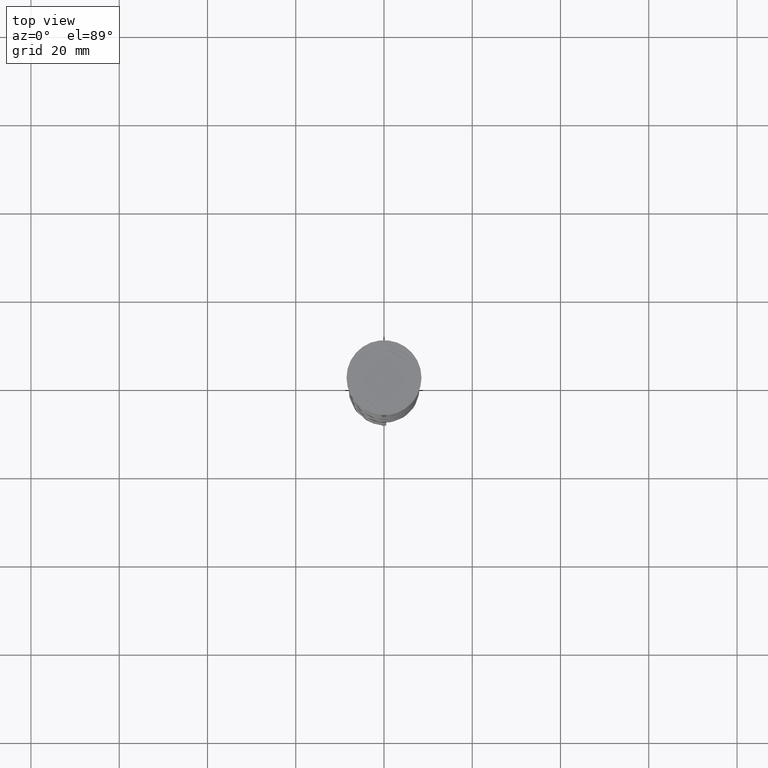
[diagram: clean part render]
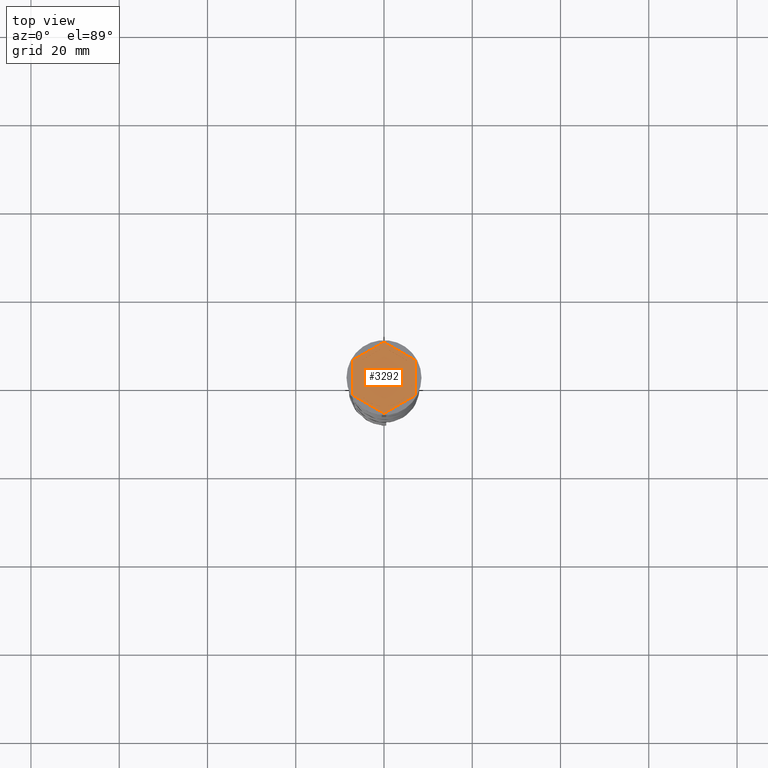
[diagram: same view with one face highlighted and labeled with its STEP entity id]
A machine part, top view. The second image highlights one B-rep face of the part: STEP entity #3292.
In plain terms, the highlighted planar face has unit normal (0, 0, 1).
Its self-contained STEP definition (entity closure, byte-faithful):
#5 = ORIENTED_EDGE ( 'NONE', *, *, #3180, .F. ) ;
#21 = EDGE_CURVE ( 'NONE', #2176, #1608, #1338, .T. ) ;
#42 = EDGE_CURVE ( 'NONE', #2419, #2198, #729, .T. ) ;
#61 = EDGE_CURVE ( 'NONE', #1783, #1264, #216, .T. ) ;
#80 = CARTESIAN_POINT ( 'NONE',  ( -7.000000000000000888, 4.041451884327381450, -1.000000000000000000 ) ) ;
#142 = CARTESIAN_POINT ( 'NONE',  ( -1.301042606982605321E-15, -6.928203230275509661, -1.000000000000000888 ) ) ;
#154 = CARTESIAN_POINT ( 'NONE',  ( 0.000000000000000000, 0.000000000000000000, -1.000000000000000000 ) ) ;
#172 = FACE_BOUND ( 'NONE', #3289, .T. ) ;
#174 = CARTESIAN_POINT ( 'NONE',  ( -7.000000000000000888, 4.041451884327381450, -1.000000000000000000 ) ) ;
#183 = LINE ( 'NONE', #1062, #2480 ) ;
#191 = EDGE_LOOP ( 'NONE', ( #3564, #953, #5 ) ) ;
#192 = VECTOR ( 'NONE', #3730, 1000.000000000000114 ) ;
#216 = LINE ( 'NONE', #1090, #3320 ) ;
#224 = VERTEX_POINT ( 'NONE', #356 ) ;
#225 = DIRECTION ( 'NONE',  ( 1.000000000000000000, 0.000000000000000000, 0.000000000000000000 ) ) ;
#248 = DIRECTION ( 'NONE',  ( -0.8660254037844385966, -0.4999999999999999445, 0.000000000000000000 ) ) ;
#277 = CARTESIAN_POINT ( 'NONE',  ( -0.8349364905388981795, 6.446152422706633800, -1.000000000000000888 ) ) ;
#278 = VERTEX_POINT ( 'NONE', #415 ) ;
#309 = ORIENTED_EDGE ( 'NONE', *, *, #3424, .F. ) ;
#332 = CARTESIAN_POINT ( 'NONE',  ( 0.000000000000000000, 8.082903768654762899, -1.000000000000000000 ) ) ;
#355 = CARTESIAN_POINT ( 'NONE',  ( 0.000000000000000000, 0.000000000000000000, -1.000000000000000000 ) ) ;
#356 = CARTESIAN_POINT ( 'NONE',  ( -7.000000000000000888, -4.041451884327381450, -1.000000000000000000 ) ) ;
#363 = VECTOR ( 'NONE', #368, 1000.000000000000227 ) ;
#368 = DIRECTION ( 'NONE',  ( 0.8660254037844384856, 0.5000000000000001110, 0.000000000000000000 ) ) ;
#402 = ORIENTED_EDGE ( 'NONE', *, *, #1915, .T. ) ;
#415 = CARTESIAN_POINT ( 'NONE',  ( -5.165063509461097269, -3.946152422706633356, -1.000000000000000888 ) ) ;
#473 = FACE_OUTER_BOUND ( 'NONE', #2677, .T. ) ;
#492 = DIRECTION ( 'NONE',  ( 1.000000000000000000, 0.000000000000000000, 0.000000000000000000 ) ) ;
#596 = ORIENTED_EDGE ( 'NONE', *, *, #42, .F. ) ;
#599 = CARTESIAN_POINT ( 'NONE',  ( 0.8349364905389003999, 6.446152422706633800, -1.000000000000000888 ) ) ;
#607 = CARTESIAN_POINT ( 'NONE',  ( 7.000000000000000000, -4.041451884327381450, -1.000000000000000000 ) ) ;
#649 = DIRECTION ( 'NONE',  ( 0.000000000000000000, 1.000000000000000000, 0.000000000000000000 ) ) ;
#707 = CARTESIAN_POINT ( 'NONE',  ( 5.999999999999999112, -3.464101615137755719, -1.000000000000000888 ) ) ;
#724 = PLANE ( 'NONE',  #2796 ) ;
#729 = CIRCLE ( 'NONE', #2044, 6.500000000000000888 ) ;
#738 = AXIS2_PLACEMENT_3D ( 'NONE', #3187, #1787, #910 ) ;
#760 = CARTESIAN_POINT ( 'NONE',  ( -6.000000000000000000, 2.500000000000001776, -1.000000000000000888 ) ) ;
#825 = LINE ( 'NONE', #1441, #192 ) ;
#894 = ORIENTED_EDGE ( 'NONE', *, *, #1004, .F. ) ;
#910 = DIRECTION ( 'NONE',  ( 1.000000000000000000, 0.000000000000000000, 0.000000000000000000 ) ) ;
#953 = ORIENTED_EDGE ( 'NONE', *, *, #3029, .F. ) ;
#973 = CARTESIAN_POINT ( 'NONE',  ( 0.000000000000000000, 0.000000000000000000, -1.000000000000000000 ) ) ;
#981 = CIRCLE ( 'NONE', #738, 6.500000000000000888 ) ;
#1002 = CARTESIAN_POINT ( 'NONE',  ( -0.8349364905389056180, -6.446152422706632024, -1.000000000000000888 ) ) ;
#1004 = EDGE_CURVE ( 'NONE', #2278, #278, #1231, .T. ) ;
#1016 = ORIENTED_EDGE ( 'NONE', *, *, #2645, .T. ) ;
#1026 = VERTEX_POINT ( 'NONE', #599 ) ;
#1044 = CARTESIAN_POINT ( 'NONE',  ( 7.000000000000000888, 4.041451884327382338, -1.000000000000000000 ) ) ;
#1053 = DIRECTION ( 'NONE',  ( 1.000000000000000000, 0.000000000000000000, -0.000000000000000000 ) ) ;
#1062 = CARTESIAN_POINT ( 'NONE',  ( 6.000000000000000888, 3.464101615137753942, -1.000000000000000888 ) ) ;
#1090 = CARTESIAN_POINT ( 'NONE',  ( 0.000000000000000000, 8.082903768654762899, -1.000000000000000000 ) ) ;
#1101 = VERTEX_POINT ( 'NONE', #2159 ) ;
#1139 = CARTESIAN_POINT ( 'NONE',  ( 6.000000000000000888, 2.500000000000000444, -1.000000000000000888 ) ) ;
#1169 = VECTOR ( 'NONE', #2683, 1000.000000000000000 ) ;
#1174 = VERTEX_POINT ( 'NONE', #1598 ) ;
#1221 = DIRECTION ( 'NONE',  ( 0.000000000000000000, 0.000000000000000000, 1.000000000000000000 ) ) ;
#1230 = AXIS2_PLACEMENT_3D ( 'NONE', #355, #3559, #1519 ) ;
#1231 = LINE ( 'NONE', #1730, #2048 ) ;
#1238 = ORIENTED_EDGE ( 'NONE', *, *, #3253, .F. ) ;
#1264 = VERTEX_POINT ( 'NONE', #174 ) ;
#1296 = CARTESIAN_POINT ( 'NONE',  ( 0.000000000000000000, 0.000000000000000000, -1.000000000000000000 ) ) ;
#1304 = DIRECTION ( 'NONE',  ( -0.8660254037844387076, -0.4999999999999998890, 0.000000000000000000 ) ) ;
#1338 = LINE ( 'NONE', #1390, #3196 ) ;
#1354 = CARTESIAN_POINT ( 'NONE',  ( 0.000000000000000000, 0.000000000000000000, -1.000000000000000000 ) ) ;
#1390 = CARTESIAN_POINT ( 'NONE',  ( 7.000000000000000000, -4.041451884327381450, -1.000000000000000000 ) ) ;
#1441 = CARTESIAN_POINT ( 'NONE',  ( -7.000000000000000888, -4.041451884327381450, -1.000000000000000000 ) ) ;
#1472 = CIRCLE ( 'NONE', #2853, 6.500000000000000888 ) ;
#1476 = EDGE_CURVE ( 'NONE', #224, #1174, #825, .T. ) ;
#1483 = CARTESIAN_POINT ( 'NONE',  ( 5.999999999999999112, -2.500000000000003109, -1.000000000000000888 ) ) ;
#1500 = ORIENTED_EDGE ( 'NONE', *, *, #1476, .T. ) ;
#1507 = EDGE_LOOP ( 'NONE', ( #2379, #1971 ) ) ;
#1511 = CARTESIAN_POINT ( 'NONE',  ( 2.174016704710901386E-15, -8.082903768654762899, -1.000000000000000000 ) ) ;
#1519 = DIRECTION ( 'NONE',  ( 1.000000000000000000, 0.000000000000000000, 0.000000000000000000 ) ) ;
#1529 = AXIS2_PLACEMENT_3D ( 'NONE', #154, #2449, #225 ) ;
#1538 = DIRECTION ( 'NONE',  ( 1.000000000000000000, 0.000000000000000000, 0.000000000000000000 ) ) ;
#1553 = VERTEX_POINT ( 'NONE', #277 ) ;
#1573 = DIRECTION ( 'NONE',  ( -2.503857664561932376E-16, -1.000000000000000000, 0.000000000000000000 ) ) ;
#1589 = CIRCLE ( 'NONE', #2728, 6.500000000000000888 ) ;
#1598 = CARTESIAN_POINT ( 'NONE',  ( 2.174016704710901386E-15, -8.082903768654762899, -1.000000000000000000 ) ) ;
#1608 = VERTEX_POINT ( 'NONE', #3535 ) ;
#1620 = LINE ( 'NONE', #1044, #2787 ) ;
#1634 = EDGE_CURVE ( 'NONE', #1861, #1917, #981, .T. ) ;
#1644 = EDGE_CURVE ( 'NONE', #1174, #2176, #3518, .T. ) ;
#1659 = ORIENTED_EDGE ( 'NONE', *, *, #21, .T. ) ;
#1663 = ORIENTED_EDGE ( 'NONE', *, *, #3067, .F. ) ;
#1708 = CIRCLE ( 'NONE', #2062, 6.500000000000000888 ) ;
#1730 = CARTESIAN_POINT ( 'NONE',  ( -6.000000000000000000, -3.464101615137754830, -1.000000000000000888 ) ) ;
#1783 = VERTEX_POINT ( 'NONE', #332 ) ;
#1787 = DIRECTION ( 'NONE',  ( 0.000000000000000000, 0.000000000000000000, 1.000000000000000000 ) ) ;
#1857 = FACE_BOUND ( 'NONE', #2043, .T. ) ;
#1861 = VERTEX_POINT ( 'NONE', #760 ) ;
#1876 = DIRECTION ( 'NONE',  ( 0.000000000000000000, 0.000000000000000000, 1.000000000000000000 ) ) ;
#1896 = CARTESIAN_POINT ( 'NONE',  ( 5.165063509461097269, 3.946152422706633356, -1.000000000000000888 ) ) ;
#1915 = EDGE_CURVE ( 'NONE', #1608, #1783, #1620, .T. ) ;
#1917 = VERTEX_POINT ( 'NONE', #2771 ) ;
#1927 = FACE_BOUND ( 'NONE', #3280, .T. ) ;
#1956 = CARTESIAN_POINT ( 'NONE',  ( 0.8349364905389008440, -6.446152422706633800, -1.000000000000000888 ) ) ;
#1960 = EDGE_CURVE ( 'NONE', #1026, #3379, #183, .T. ) ;
#1971 = ORIENTED_EDGE ( 'NONE', *, *, #3700, .F. ) ;
#1997 = VECTOR ( 'NONE', #1304, 1000.000000000000000 ) ;
#2043 = EDGE_LOOP ( 'NONE', ( #3031, #1238 ) ) ;
#2044 = AXIS2_PLACEMENT_3D ( 'NONE', #2211, #3088, #3676 ) ;
#2048 = VECTOR ( 'NONE', #2069, 1000.000000000000000 ) ;
#2062 = AXIS2_PLACEMENT_3D ( 'NONE', #973, #1221, #2995 ) ;
#2069 = DIRECTION ( 'NONE',  ( -0.8660254037844385966, 0.5000000000000001110, 0.000000000000000000 ) ) ;
#2159 = CARTESIAN_POINT ( 'NONE',  ( -5.165063509461101710, 3.946152422706626250, -1.000000000000000888 ) ) ;
#2173 = VERTEX_POINT ( 'NONE', #1483 ) ;
#2176 = VERTEX_POINT ( 'NONE', #607 ) ;
#2184 = DIRECTION ( 'NONE',  ( 0.8660254037844388186, -0.4999999999999998335, 0.000000000000000000 ) ) ;
#2198 = VERTEX_POINT ( 'NONE', #2942 ) ;
#2206 = FACE_BOUND ( 'NONE', #3047, .T. ) ;
#2211 = CARTESIAN_POINT ( 'NONE',  ( 0.000000000000000000, 0.000000000000000000, -1.000000000000000000 ) ) ;
#2233 = DIRECTION ( 'NONE',  ( 0.8660254037844385966, 0.5000000000000001110, -0.000000000000000000 ) ) ;
#2253 = LINE ( 'NONE', #3417, #2310 ) ;
#2278 = VERTEX_POINT ( 'NONE', #1002 ) ;
#2286 = EDGE_CURVE ( 'NONE', #2198, #2419, #2729, .T. ) ;
#2310 = VECTOR ( 'NONE', #2233, 1000.000000000000000 ) ;
#2375 = CARTESIAN_POINT ( 'NONE',  ( -6.000000000000000000, 3.464101615137752166, -1.000000000000000888 ) ) ;
#2379 = ORIENTED_EDGE ( 'NONE', *, *, #3366, .F. ) ;
#2419 = VERTEX_POINT ( 'NONE', #1956 ) ;
#2426 = DIRECTION ( 'NONE',  ( -0.8660254037844387076, 0.4999999999999998890, 0.000000000000000000 ) ) ;
#2443 = ORIENTED_EDGE ( 'NONE', *, *, #61, .T. ) ;
#2449 = DIRECTION ( 'NONE',  ( 0.000000000000000000, 0.000000000000000000, 1.000000000000000000 ) ) ;
#2480 = VECTOR ( 'NONE', #2184, 999.9999999999998863 ) ;
#2486 = VECTOR ( 'NONE', #1573, 1000.000000000000000 ) ;
#2502 = ORIENTED_EDGE ( 'NONE', *, *, #1960, .F. ) ;
#2506 = LINE ( 'NONE', #707, #2486 ) ;
#2511 = DIRECTION ( 'NONE',  ( 1.073081856240827703E-16, 1.000000000000000000, 0.000000000000000000 ) ) ;
#2645 = EDGE_CURVE ( 'NONE', #1264, #224, #2666, .T. ) ;
#2666 = LINE ( 'NONE', #80, #1169 ) ;
#2677 = EDGE_LOOP ( 'NONE', ( #402, #2443, #1016, #1500, #3184, #1659 ) ) ;
#2683 = DIRECTION ( 'NONE',  ( 0.000000000000000000, -1.000000000000000000, 0.000000000000000000 ) ) ;
#2727 = VECTOR ( 'NONE', #649, 1000.000000000000000 ) ;
#2728 = AXIS2_PLACEMENT_3D ( 'NONE', #3584, #3545, #1538 ) ;
#2729 = LINE ( 'NONE', #142, #1997 ) ;
#2771 = CARTESIAN_POINT ( 'NONE',  ( -6.500000000000000888, 0.000000000000000000, -1.000000000000000000 ) ) ;
#2787 = VECTOR ( 'NONE', #2426, 1000.000000000000114 ) ;
#2796 = AXIS2_PLACEMENT_3D ( 'NONE', #1354, #1876, #1053 ) ;
#2853 = AXIS2_PLACEMENT_3D ( 'NONE', #1296, #3013, #492 ) ;
#2942 = CARTESIAN_POINT ( 'NONE',  ( 5.165063509461097269, -3.946152422706631580, -1.000000000000000888 ) ) ;
#2995 = DIRECTION ( 'NONE',  ( 1.000000000000000000, 0.000000000000000000, 0.000000000000000000 ) ) ;
#3013 = DIRECTION ( 'NONE',  ( 0.000000000000000000, 0.000000000000000000, 1.000000000000000000 ) ) ;
#3029 = EDGE_CURVE ( 'NONE', #3365, #1861, #3218, .T. ) ;
#3031 = ORIENTED_EDGE ( 'NONE', *, *, #3211, .F. ) ;
#3047 = EDGE_LOOP ( 'NONE', ( #309, #894 ) ) ;
#3065 = CARTESIAN_POINT ( 'NONE',  ( -6.000000000000000000, -2.500000000000001776, -1.000000000000000888 ) ) ;
#3067 = EDGE_CURVE ( 'NONE', #3379, #1026, #1589, .T. ) ;
#3088 = DIRECTION ( 'NONE',  ( 0.000000000000000000, 0.000000000000000000, 1.000000000000000000 ) ) ;
#3180 = EDGE_CURVE ( 'NONE', #1917, #3365, #3523, .T. ) ;
#3184 = ORIENTED_EDGE ( 'NONE', *, *, #1644, .T. ) ;
#3187 = CARTESIAN_POINT ( 'NONE',  ( 0.000000000000000000, 0.000000000000000000, -1.000000000000000000 ) ) ;
#3196 = VECTOR ( 'NONE', #2511, 1000.000000000000000 ) ;
#3211 = EDGE_CURVE ( 'NONE', #2173, #3499, #1708, .T. ) ;
#3218 = LINE ( 'NONE', #2375, #2727 ) ;
#3253 = EDGE_CURVE ( 'NONE', #3499, #2173, #2506, .T. ) ;
#3280 = EDGE_LOOP ( 'NONE', ( #1663, #2502 ) ) ;
#3281 = CIRCLE ( 'NONE', #1529, 6.500000000000000888 ) ;
#3289 = EDGE_LOOP ( 'NONE', ( #596, #3519 ) ) ;
#3292 = ADVANCED_FACE ( 'NONE', ( #1927, #1857, #172, #2206, #3671, #3619, #473 ), #724, .T. ) ;
#3320 = VECTOR ( 'NONE', #248, 1000.000000000000114 ) ;
#3365 = VERTEX_POINT ( 'NONE', #3065 ) ;
#3366 = EDGE_CURVE ( 'NONE', #1553, #1101, #1472, .T. ) ;
#3379 = VERTEX_POINT ( 'NONE', #1896 ) ;
#3417 = CARTESIAN_POINT ( 'NONE',  ( 0.000000000000000000, 6.928203230275507885, -1.000000000000000888 ) ) ;
#3424 = EDGE_CURVE ( 'NONE', #278, #2278, #3281, .T. ) ;
#3499 = VERTEX_POINT ( 'NONE', #1139 ) ;
#3518 = LINE ( 'NONE', #1511, #363 ) ;
#3519 = ORIENTED_EDGE ( 'NONE', *, *, #2286, .F. ) ;
#3523 = CIRCLE ( 'NONE', #1230, 6.500000000000000888 ) ;
#3535 = CARTESIAN_POINT ( 'NONE',  ( 7.000000000000000888, 4.041451884327382338, -1.000000000000000000 ) ) ;
#3545 = DIRECTION ( 'NONE',  ( 0.000000000000000000, 0.000000000000000000, 1.000000000000000000 ) ) ;
#3559 = DIRECTION ( 'NONE',  ( 0.000000000000000000, 0.000000000000000000, 1.000000000000000000 ) ) ;
#3564 = ORIENTED_EDGE ( 'NONE', *, *, #1634, .F. ) ;
#3584 = CARTESIAN_POINT ( 'NONE',  ( 0.000000000000000000, 0.000000000000000000, -1.000000000000000000 ) ) ;
#3619 = FACE_BOUND ( 'NONE', #1507, .T. ) ;
#3671 = FACE_BOUND ( 'NONE', #191, .T. ) ;
#3676 = DIRECTION ( 'NONE',  ( 1.000000000000000000, 0.000000000000000000, 0.000000000000000000 ) ) ;
#3700 = EDGE_CURVE ( 'NONE', #1101, #1553, #2253, .T. ) ;
#3730 = DIRECTION ( 'NONE',  ( 0.8660254037844387076, -0.4999999999999997224, 0.000000000000000000 ) ) ;